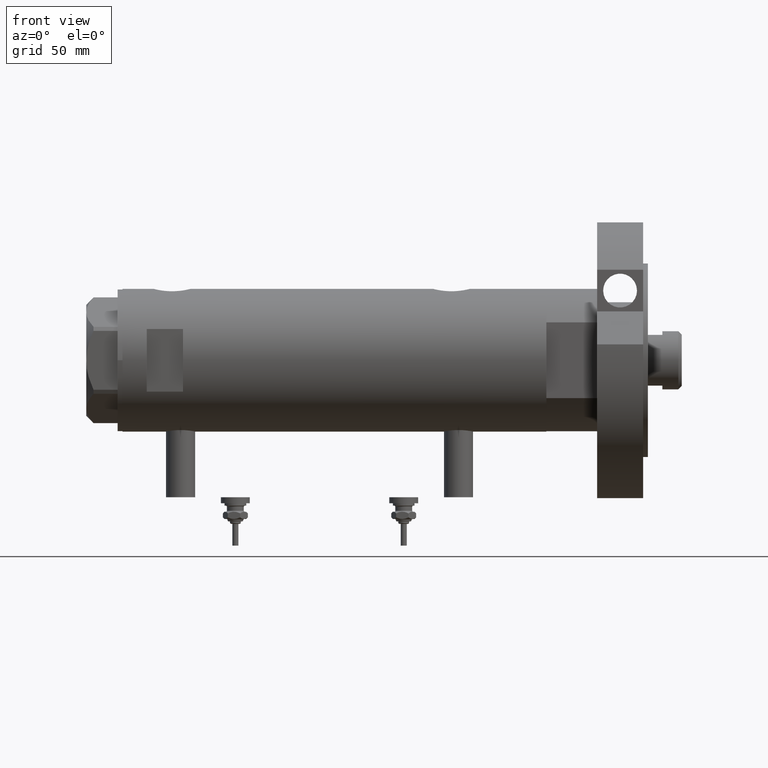
[diagram: clean part render]
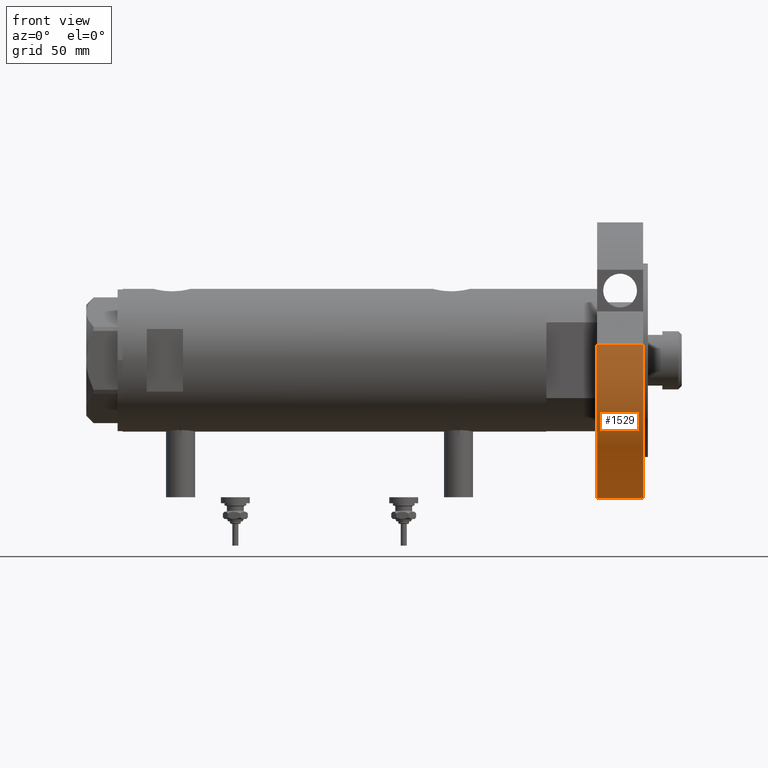
[diagram: same view with one face highlighted and labeled with its STEP entity id]
A machine part, front view. The second image highlights one B-rep face of the part: STEP entity #1529.
In plain terms, the highlighted cylindrical surface (partial cylindrical patch) has radius 57 mm, axis along (-1, -0, 0).
Its self-contained STEP definition (entity closure, byte-faithful):
#107 = EDGE_CURVE ( 'NONE', #6519, #6270, #1033, .T. ) ;
#379 = AXIS2_PLACEMENT_3D ( 'NONE', #2708, #5049, #2355 ) ;
#627 = EDGE_CURVE ( 'NONE', #1952, #6270, #2192, .T. ) ;
#1033 = LINE ( 'NONE', #4434, #5733 ) ;
#1130 = CARTESIAN_POINT ( 'NONE',  ( 6.569366352211361004, 56.62016801220598694, 19.00000000000000000 ) ) ;
#1529 = ADVANCED_FACE ( 'NONE', ( #6951 ), #3854, .T. ) ;
#1791 = LINE ( 'NONE', #2364, #2278 ) ;
#1824 = DIRECTION ( 'NONE',  ( 0.000000000000000000, 0.000000000000000000, 1.000000000000000000 ) ) ;
#1952 = VERTEX_POINT ( 'NONE', #5080 ) ;
#2192 = CIRCLE ( 'NONE', #6958, 57.00000000000000000 ) ;
#2278 = VECTOR ( 'NONE', #4121, 1000.000000000000000 ) ;
#2355 = DIRECTION ( 'NONE',  ( -1.000000000000000000, 0.000000000000000000, 0.000000000000000000 ) ) ;
#2364 = CARTESIAN_POINT ( 'NONE',  ( 6.569366352211361004, 56.62016801220598694, 0.000000000000000000 ) ) ;
#2708 = CARTESIAN_POINT ( 'NONE',  ( 0.000000000000000000, 0.000000000000000000, 19.00000000000000000 ) ) ;
#3132 = CARTESIAN_POINT ( 'NONE',  ( -57.00000000000000000, 0.000000000000000000, 0.000000000000000000 ) ) ;
#3613 = DIRECTION ( 'NONE',  ( 0.000000000000000000, 0.000000000000000000, 1.000000000000000000 ) ) ;
#3764 = EDGE_LOOP ( 'NONE', ( #6719, #4620, #6813, #5976 ) ) ;
#3850 = DIRECTION ( 'NONE',  ( -0.000000000000000000, -0.000000000000000000, -1.000000000000000000 ) ) ;
#3854 = CYLINDRICAL_SURFACE ( 'NONE', #379, 57.00000000000000000 ) ;
#4121 = DIRECTION ( 'NONE',  ( -0.000000000000000000, -0.000000000000000000, 1.000000000000000000 ) ) ;
#4201 = DIRECTION ( 'NONE',  ( 1.000000000000000000, 0.000000000000000000, 0.000000000000000000 ) ) ;
#4307 = CARTESIAN_POINT ( 'NONE',  ( 0.000000000000000000, 0.000000000000000000, 19.00000000000000000 ) ) ;
#4434 = CARTESIAN_POINT ( 'NONE',  ( -57.00000000000000000, 0.000000000000000000, 19.00000000000000000 ) ) ;
#4620 = ORIENTED_EDGE ( 'NONE', *, *, #5771, .F. ) ;
#5049 = DIRECTION ( 'NONE',  ( -0.000000000000000000, -0.000000000000000000, -1.000000000000000000 ) ) ;
#5080 = CARTESIAN_POINT ( 'NONE',  ( 6.569366352211361004, 56.62016801220598694, 0.000000000000000000 ) ) ;
#5352 = CARTESIAN_POINT ( 'NONE',  ( -57.00000000000000000, 0.000000000000000000, 19.00000000000000000 ) ) ;
#5733 = VECTOR ( 'NONE', #3850, 1000.000000000000000 ) ;
#5771 = EDGE_CURVE ( 'NONE', #7260, #6519, #7160, .T. ) ;
#5949 = DIRECTION ( 'NONE',  ( 1.000000000000000000, 0.000000000000000000, 0.000000000000000000 ) ) ;
#5976 = ORIENTED_EDGE ( 'NONE', *, *, #627, .T. ) ;
#6270 = VERTEX_POINT ( 'NONE', #3132 ) ;
#6430 = EDGE_CURVE ( 'NONE', #1952, #7260, #1791, .T. ) ;
#6519 = VERTEX_POINT ( 'NONE', #5352 ) ;
#6533 = CARTESIAN_POINT ( 'NONE',  ( 0.000000000000000000, 0.000000000000000000, 0.000000000000000000 ) ) ;
#6719 = ORIENTED_EDGE ( 'NONE', *, *, #107, .F. ) ;
#6813 = ORIENTED_EDGE ( 'NONE', *, *, #6430, .F. ) ;
#6951 = FACE_OUTER_BOUND ( 'NONE', #3764, .T. ) ;
#6958 = AXIS2_PLACEMENT_3D ( 'NONE', #6533, #1824, #4201 ) ;
#7160 = CIRCLE ( 'NONE', #7553, 57.00000000000000000 ) ;
#7260 = VERTEX_POINT ( 'NONE', #1130 ) ;
#7553 = AXIS2_PLACEMENT_3D ( 'NONE', #4307, #3613, #5949 ) ;